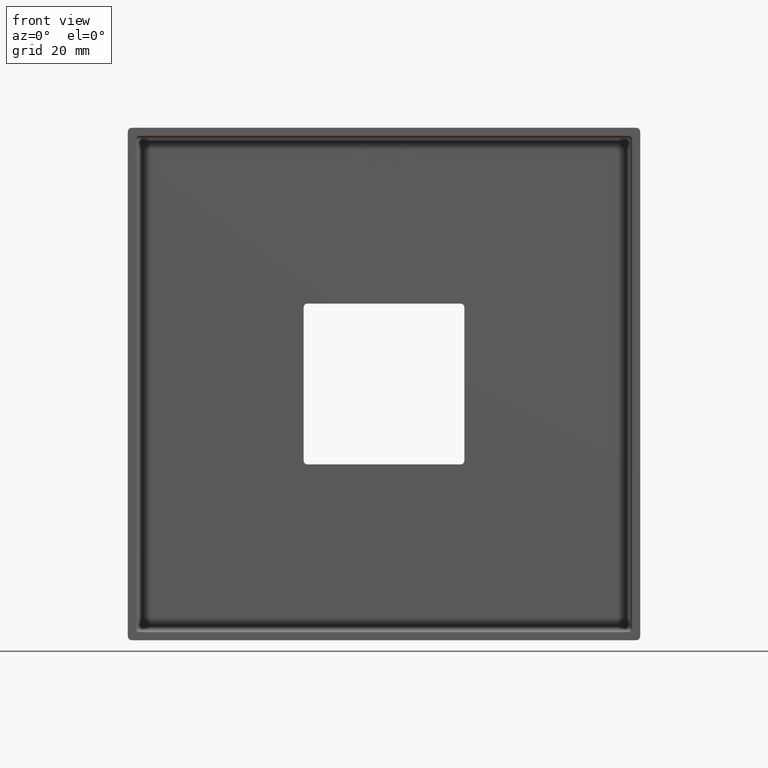
[diagram: clean part render]
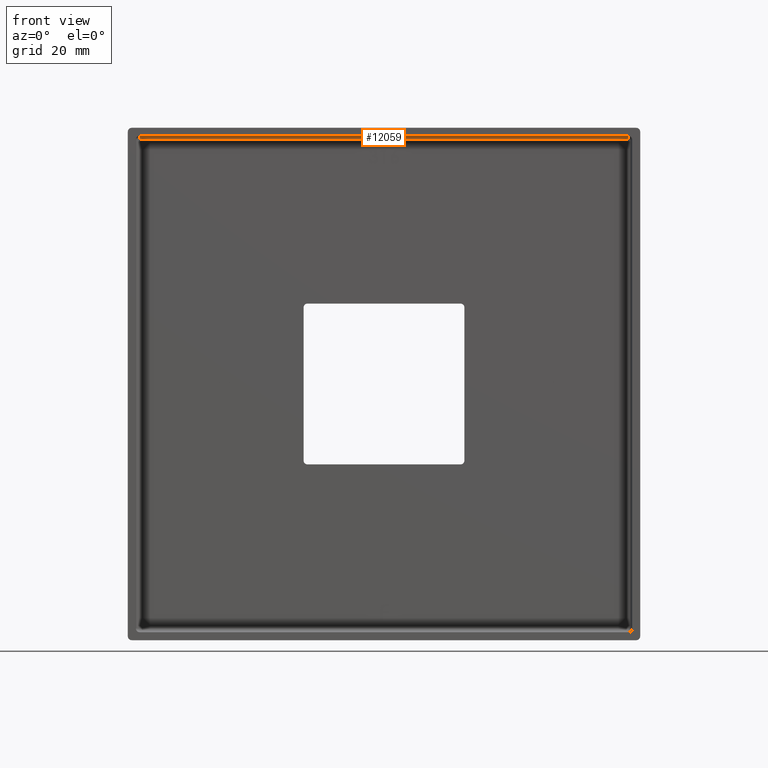
[diagram: same view with one face highlighted and labeled with its STEP entity id]
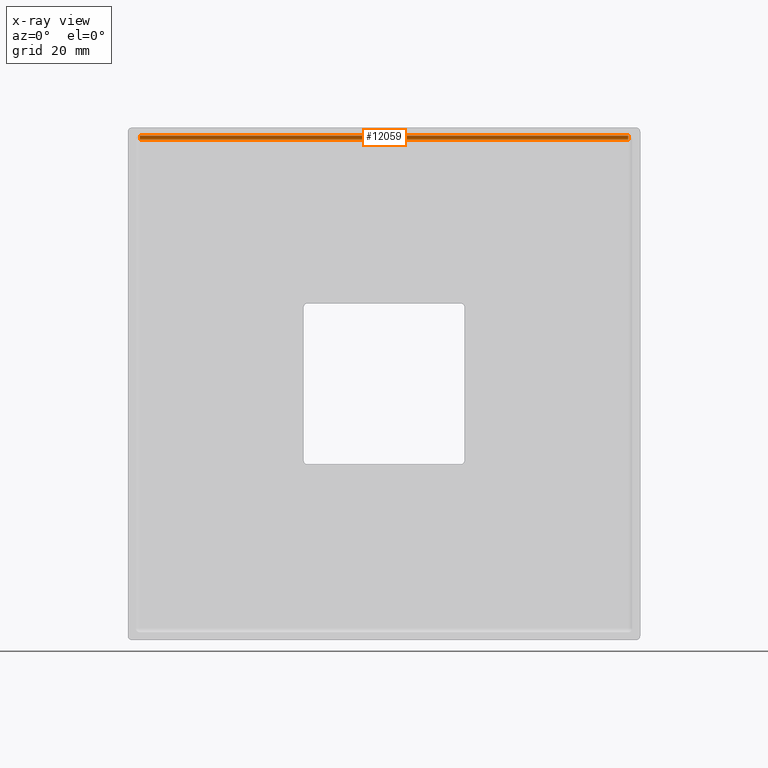
[diagram: x-ray of the same camera — body ghosted, the highlighted face saturated]
A machine part, front view. The second image highlights one B-rep face of the part: STEP entity #12059.
The next image is the same camera in x-ray: the body ghosted, the highlighted face saturated — about 0% of this face is hidden behind the body in this view.
In plain terms, the highlighted cylindrical surface (edge-blend (fillet) strip) has radius 1 mm, axis along (1, -0, 0).
Its self-contained STEP definition (entity closure, byte-faithful):
#232 = CARTESIAN_POINT ( 'NONE',  ( 61.50000000000000000, 23.00000000000000000, 61.50000000000000000 ) ) ;
#677 = VERTEX_POINT ( 'NONE', #5597 ) ;
#691 = ORIENTED_EDGE ( 'NONE', *, *, #4206, .F. ) ;
#1130 = AXIS2_PLACEMENT_3D ( 'NONE', #8970, #10712, #14030 ) ;
#1261 = DIRECTION ( 'NONE',  ( 1.000000000000000000, -0.000000000000000000, 0.000000000000000000 ) ) ;
#1308 = CARTESIAN_POINT ( 'NONE',  ( -64.49999999999997158, 22.00000000000000000, 62.50000000000000000 ) ) ;
#1392 = CIRCLE ( 'NONE', #1130, 1.000000000000000888 ) ;
#1995 = DIRECTION ( 'NONE',  ( 0.000000000000000000, 0.000000000000000000, 1.000000000000000000 ) ) ;
#2103 = EDGE_CURVE ( 'NONE', #10117, #677, #9148, .T. ) ;
#2590 = ORIENTED_EDGE ( 'NONE', *, *, #8651, .F. ) ;
#2957 = CARTESIAN_POINT ( 'NONE',  ( 61.50000000000000000, 22.00000000000000000, 61.50000000000000000 ) ) ;
#3190 = CARTESIAN_POINT ( 'NONE',  ( 61.50000000000000000, 22.00000000000000000, 62.50000000000000000 ) ) ;
#4206 = EDGE_CURVE ( 'NONE', #6241, #7593, #4656, .T. ) ;
#4656 = LINE ( 'NONE', #1308, #11633 ) ;
#5597 = CARTESIAN_POINT ( 'NONE',  ( -61.49999999999997158, 23.00000000000000000, 61.50000000000000000 ) ) ;
#6241 = VERTEX_POINT ( 'NONE', #14833 ) ;
#6276 = VECTOR ( 'NONE', #8671, 1000.000000000000000 ) ;
#7107 = FACE_OUTER_BOUND ( 'NONE', #9780, .T. ) ;
#7593 = VERTEX_POINT ( 'NONE', #3190 ) ;
#8626 = CARTESIAN_POINT ( 'NONE',  ( 0.000000000000000000, 23.00000000000000000, 61.50000000000000000 ) ) ;
#8651 = EDGE_CURVE ( 'NONE', #677, #6241, #1392, .T. ) ;
#8671 = DIRECTION ( 'NONE',  ( -1.000000000000000000, 0.000000000000000000, -0.000000000000000000 ) ) ;
#8873 = AXIS2_PLACEMENT_3D ( 'NONE', #2957, #13467, #1995 ) ;
#8920 = CYLINDRICAL_SURFACE ( 'NONE', #11523, 1.000000000000000888 ) ;
#8970 = CARTESIAN_POINT ( 'NONE',  ( -61.49999999999997158, 22.00000000000000000, 61.50000000000000000 ) ) ;
#9148 = LINE ( 'NONE', #8626, #6276 ) ;
#9780 = EDGE_LOOP ( 'NONE', ( #11672, #691, #2590, #13558 ) ) ;
#9781 = CIRCLE ( 'NONE', #8873, 1.000000000000000888 ) ;
#10117 = VERTEX_POINT ( 'NONE', #232 ) ;
#10712 = DIRECTION ( 'NONE',  ( 1.000000000000000000, 0.000000000000000000, 0.000000000000000000 ) ) ;
#11523 = AXIS2_PLACEMENT_3D ( 'NONE', #13037, #14201, #11923 ) ;
#11633 = VECTOR ( 'NONE', #1261, 1000.000000000000000 ) ;
#11672 = ORIENTED_EDGE ( 'NONE', *, *, #14222, .F. ) ;
#11923 = DIRECTION ( 'NONE',  ( 0.000000000000000000, 0.000000000000000000, -1.000000000000000000 ) ) ;
#12059 = ADVANCED_FACE ( 'NONE', ( #7107 ), #8920, .F. ) ;
#13037 = CARTESIAN_POINT ( 'NONE',  ( -64.49999999999997158, 22.00000000000000000, 61.50000000000000000 ) ) ;
#13467 = DIRECTION ( 'NONE',  ( -1.000000000000000000, 0.000000000000000000, 0.000000000000000000 ) ) ;
#13558 = ORIENTED_EDGE ( 'NONE', *, *, #2103, .F. ) ;
#14030 = DIRECTION ( 'NONE',  ( 0.000000000000000000, 0.000000000000000000, -1.000000000000000000 ) ) ;
#14201 = DIRECTION ( 'NONE',  ( 1.000000000000000000, -0.000000000000000000, 0.000000000000000000 ) ) ;
#14222 = EDGE_CURVE ( 'NONE', #7593, #10117, #9781, .T. ) ;
#14833 = CARTESIAN_POINT ( 'NONE',  ( -61.49999999999997158, 22.00000000000000000, 62.50000000000000000 ) ) ;